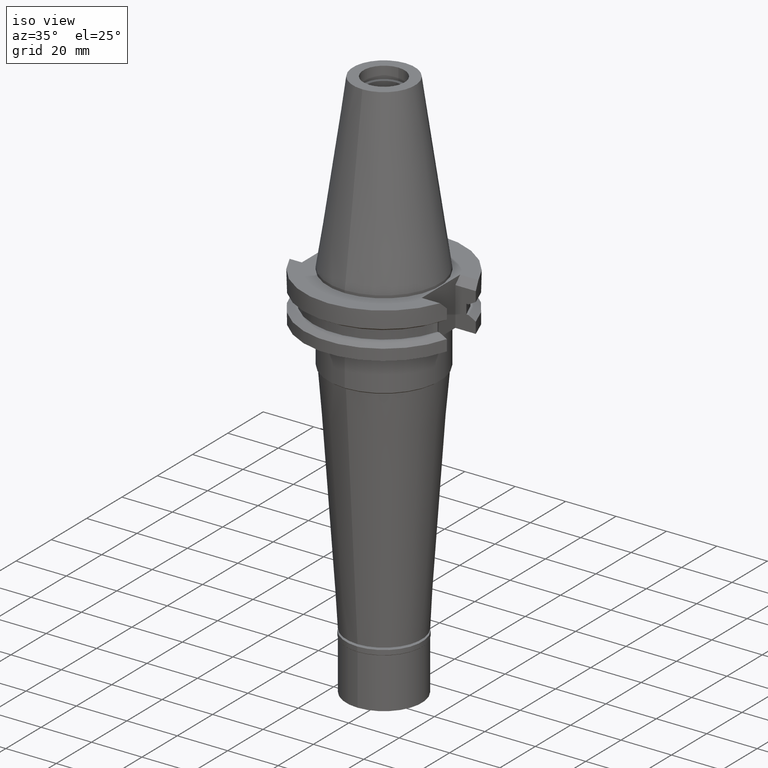
[diagram: clean part render]
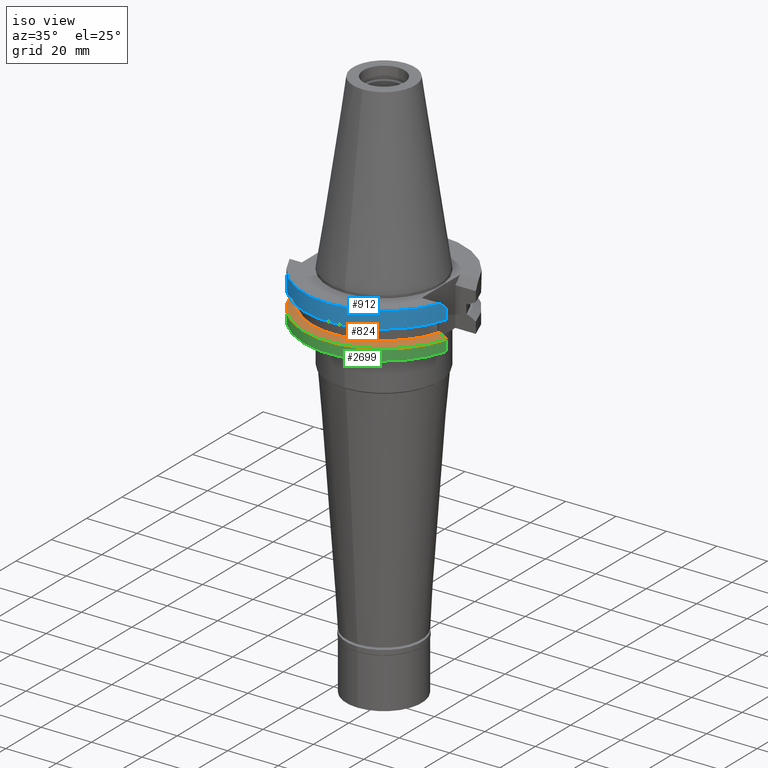
[diagram: same view with three faces highlighted in distinct colors, each labeled with its STEP entity id]
A machine part, iso view with three faces highlighted in distinct colors.
Their STEP definitions:

[orange] entity #824 — the highlighted conical surface has half-angle 60 deg.
#9 = ORIENTED_EDGE ( 'NONE', *, *, #1950, .F. ) ;
#22 = FACE_OUTER_BOUND ( 'NONE', #3254, .T. ) ;
#90 = CARTESIAN_POINT ( 'NONE',  ( -29.69840292686000183, -8.189999973648999898, -14.10718831921999872 ) ) ;
#106 = DIRECTION ( 'NONE',  ( 0.0000000000000000000, 0.0000000000000000000, -1.000000000000000000 ) ) ;
#141 = DIRECTION ( 'NONE',  ( 0.0000000000000000000, 0.0000000000000000000, -1.000000000000000000 ) ) ;
#175 = CARTESIAN_POINT ( 'NONE',  ( 0.0000000000000000000, 1.055021971275999843E-14, -13.85091832103000087 ) ) ;
#295 = CIRCLE ( 'NONE', #463, 31.74999999999998579 ) ;
#372 = CARTESIAN_POINT ( 'NONE',  ( 28.10705132222999936, -8.190000189174000411, -13.22337926646999939 ) ) ;
#411 = B_SPLINE_CURVE_WITH_KNOTS ( 'NONE', 3,
 ( #2697, #372, #3199, #1913, #863, #1405 ),
 .UNSPECIFIED., .F., .F.,
 ( 4, 1, 1, 4 ),
 ( 0.0000000000000000000, 0.3333333333333000081, 0.6666666666667000474, 1.000000000000000000 ),
 .UNSPECIFIED. ) ;
#461 = VERTEX_POINT ( 'NONE', #659 ) ;
#463 = AXIS2_PLACEMENT_3D ( 'NONE', #849, #2899, #781 ) ;
#604 = AXIS2_PLACEMENT_3D ( 'NONE', #175, #141, #1709 ) ;
#659 = CARTESIAN_POINT ( 'NONE',  ( -27.79399588473999927, -8.189999365883000593, -13.05000000000000071 ) ) ;
#692 = CARTESIAN_POINT ( 'NONE',  ( 0.0000000000000000000, 1.055021971275999843E-14, -13.05000000000000071 ) ) ;
#781 = DIRECTION ( 'NONE',  ( 0.9661575315241073270, -0.2579527559055020958, 0.0000000000000000000 ) ) ;
#824 = ADVANCED_FACE ( 'NONE', ( #22 ), #3110, .T. ) ;
#849 = CARTESIAN_POINT ( 'NONE',  ( 0.0000000000000000000, 1.055021971275999843E-14, -14.65183664206000103 ) ) ;
#863 = CARTESIAN_POINT ( 'NONE',  ( 30.34821319413000040, -8.190000601169000305, -14.46927691749000111 ) ) ;
#885 = ORIENTED_EDGE ( 'NONE', *, *, #2909, .F. ) ;
#897 = CARTESIAN_POINT ( 'NONE',  ( -28.10705140341000074, -8.189999365883000593, -13.22337244881000018 ) ) ;
#997 = EDGE_CURVE ( 'NONE', #1016, #461, #1693, .T. ) ;
#1016 = VERTEX_POINT ( 'NONE', #1145 ) ;
#1066 = VERTEX_POINT ( 'NONE', #2265 ) ;
#1081 = VERTEX_POINT ( 'NONE', #2019 ) ;
#1114 = CARTESIAN_POINT ( 'NONE',  ( -28.73791142355999995, -8.190000279292998897, -13.57322328676999845 ) ) ;
#1145 = CARTESIAN_POINT ( 'NONE',  ( 27.79398348484999914, -8.190000189174000411, -13.05000000000000071 ) ) ;
#1339 = B_SPLINE_CURVE_WITH_KNOTS ( 'NONE', 3,
 ( #1608, #3233, #90, #1114, #897, #2148 ),
 .UNSPECIFIED., .F., .F.,
 ( 4, 1, 1, 4 ),
 ( 0.0000000000000000000, 0.3333333333333000081, 0.6666666666667000474, 1.000000000000000000 ),
 .UNSPECIFIED. ) ;
#1405 = CARTESIAN_POINT ( 'NONE',  ( 30.67550146538999911, -8.190000601169000305, -14.65184201425000055 ) ) ;
#1608 = CARTESIAN_POINT ( 'NONE',  ( -30.67550165918999738, -8.189999875291000819, -14.65183552763999941 ) ) ;
#1670 = DIRECTION ( 'NONE',  ( 0.0000000000000000000, -1.000000000000000000, 0.0000000000000000000 ) ) ;
#1693 = CIRCLE ( 'NONE', #2017, 28.97553755052999946 ) ;
#1709 = DIRECTION ( 'NONE',  ( 0.0000000000000000000, -1.000000000000000000, 0.0000000000000000000 ) ) ;
#1830 = ORIENTED_EDGE ( 'NONE', *, *, #997, .T. ) ;
#1913 = CARTESIAN_POINT ( 'NONE',  ( 29.69840152093999919, -8.189999744677999516, -14.10718489775000073 ) ) ;
#1950 = EDGE_CURVE ( 'NONE', #1066, #1081, #295, .T. ) ;
#2017 = AXIS2_PLACEMENT_3D ( 'NONE', #692, #106, #1670 ) ;
#2019 = CARTESIAN_POINT ( 'NONE',  ( -30.67550165918999738, -8.189999875291000819, -14.65183552763999941 ) ) ;
#2148 = CARTESIAN_POINT ( 'NONE',  ( -27.79399588473999927, -8.189999365883000593, -13.05000000000000071 ) ) ;
#2183 = EDGE_CURVE ( 'NONE', #1016, #1066, #411, .T. ) ;
#2245 = ORIENTED_EDGE ( 'NONE', *, *, #2183, .F. ) ;
#2265 = CARTESIAN_POINT ( 'NONE',  ( 30.67550146538999911, -8.190000601169000305, -14.65184201425000055 ) ) ;
#2697 = CARTESIAN_POINT ( 'NONE',  ( 27.79398348484999914, -8.190000189174000411, -13.05000000000000071 ) ) ;
#2899 = DIRECTION ( 'NONE',  ( 0.0000000000000000000, 0.0000000000000000000, -1.000000000000000000 ) ) ;
#2909 = EDGE_CURVE ( 'NONE', #1081, #461, #1339, .T. ) ;
#3110 = CONICAL_SURFACE ( 'NONE', #604, 30.36276877526999840, 1.047197551196400456 ) ;
#3199 = CARTESIAN_POINT ( 'NONE',  ( 28.73790650484999887, -8.189999991875000163, -13.57321774197000153 ) ) ;
#3233 = CARTESIAN_POINT ( 'NONE',  ( -30.34821917377999867, -8.189999875291000819, -14.46927365482000027 ) ) ;
#3254 = EDGE_LOOP ( 'NONE', ( #2245, #1830, #885, #9 ) ) ;

[blue] entity #912 — the highlighted cylindrical surface (partial cylindrical patch) has radius 31.75 mm, axis along (0, 0, -1).
#91 = ORIENTED_EDGE ( 'NONE', *, *, #837, .T. ) ;
#221 = CIRCLE ( 'NONE', #2502, 31.75000000000000000 ) ;
#227 = ORIENTED_EDGE ( 'NONE', *, *, #1554, .F. ) ;
#306 = CARTESIAN_POINT ( 'NONE',  ( -30.67550162588999640, -8.189999999999999503, -3.700000000000000178 ) ) ;
#553 = CIRCLE ( 'NONE', #3281, 31.74999999999998579 ) ;
#616 = ORIENTED_EDGE ( 'NONE', *, *, #854, .F. ) ;
#655 = CARTESIAN_POINT ( 'NONE',  ( -30.67550162588999640, -8.189999999999999503, -3.700000000000000178 ) ) ;
#735 = DIRECTION ( 'NONE',  ( -0.9661575315241073270, -0.2579527559055020958, 0.0000000000000000000 ) ) ;
#773 = VECTOR ( 'NONE', #3034, 1000.000000000000114 ) ;
#814 = VERTEX_POINT ( 'NONE', #2395 ) ;
#837 = EDGE_CURVE ( 'NONE', #1134, #3182, #221, .T. ) ;
#854 = EDGE_CURVE ( 'NONE', #2157, #3118, #2503, .T. ) ;
#901 = CARTESIAN_POINT ( 'NONE',  ( -30.67550165918999738, -8.189999875294001086, -7.608164472371999665 ) ) ;
#910 = DIRECTION ( 'NONE',  ( 0.0000000000000000000, 0.0000000000000000000, -1.000000000000000000 ) ) ;
#912 = ADVANCED_FACE ( 'NONE', ( #2170 ), #1420, .T. ) ;
#942 = B_SPLINE_CURVE_WITH_KNOTS ( 'NONE', 3,
 ( #2777, #1804, #3121, #2566 ),
 .UNSPECIFIED., .F., .F.,
 ( 4, 4 ),
 ( 0.0000000000000000000, 1.000000000000000000 ),
 .UNSPECIFIED. ) ;
#990 = DIRECTION ( 'NONE',  ( 0.0000000000000000000, 0.0000000000000000000, 1.000000000000000000 ) ) ;
#1119 = ORIENTED_EDGE ( 'NONE', *, *, #1309, .F. ) ;
#1121 = CARTESIAN_POINT ( 'NONE',  ( -29.82399034335000110, -10.89000000000000057, -1.000000000001000089 ) ) ;
#1127 = VERTEX_POINT ( 'NONE', #2492 ) ;
#1134 = VERTEX_POINT ( 'NONE', #1755 ) ;
#1140 = CARTESIAN_POINT ( 'NONE',  ( 30.67550162588999640, -8.189999999999999503, -3.700000000000000178 ) ) ;
#1170 = EDGE_CURVE ( 'NONE', #2157, #1127, #553, .T. ) ;
#1177 = EDGE_LOOP ( 'NONE', ( #1119, #91, #227, #616, #1482, #1990 ) ) ;
#1309 = EDGE_CURVE ( 'NONE', #1134, #814, #942, .T. ) ;
#1375 = CARTESIAN_POINT ( 'NONE',  ( -30.14799306409551960, -10.00266721625513888, -1.887332783744861908 ) ) ;
#1420 = CYLINDRICAL_SURFACE ( 'NONE', #2508, 31.75000000000000000 ) ;
#1482 = ORIENTED_EDGE ( 'NONE', *, *, #1170, .T. ) ;
#1554 = EDGE_CURVE ( 'NONE', #3118, #3182, #3143, .T. ) ;
#1686 = LINE ( 'NONE', #1140, #2869 ) ;
#1755 = CARTESIAN_POINT ( 'NONE',  ( 29.82399034335000110, -10.89000000000000057, -1.000000000001000089 ) ) ;
#1804 = CARTESIAN_POINT ( 'NONE',  ( 30.14799306409552671, -10.00266721625513888, -1.887332783744861908 ) ) ;
#1990 = ORIENTED_EDGE ( 'NONE', *, *, #2357, .F. ) ;
#1994 = DIRECTION ( 'NONE',  ( 0.0000000000000000000, -1.000000000000000000, 0.0000000000000000000 ) ) ;
#2023 = CARTESIAN_POINT ( 'NONE',  ( -29.82399034335000110, -10.89000000000000057, -1.000000000001000089 ) ) ;
#2157 = VERTEX_POINT ( 'NONE', #901 ) ;
#2170 = FACE_OUTER_BOUND ( 'NONE', #1177, .T. ) ;
#2246 = CARTESIAN_POINT ( 'NONE',  ( -30.67550165918999738, -8.189999875294001086, -7.608164472371999665 ) ) ;
#2357 = EDGE_CURVE ( 'NONE', #814, #1127, #1686, .T. ) ;
#2395 = CARTESIAN_POINT ( 'NONE',  ( 30.67550162588999640, -8.189999999999999503, -3.700000000000000178 ) ) ;
#2408 = CARTESIAN_POINT ( 'NONE',  ( 0.0000000000000000000, 1.121665249527999917E-14, -7.608163357944999206 ) ) ;
#2426 = DIRECTION ( 'NONE',  ( -4.107004163246946933E-08, -1.538276136285980180E-07, -0.9999999999999872324 ) ) ;
#2450 = CARTESIAN_POINT ( 'NONE',  ( 0.0000000000000000000, 2.191474830903999739E-14, -1.000000000000000000 ) ) ;
#2492 = CARTESIAN_POINT ( 'NONE',  ( 30.67550146537999822, -8.190000601182999773, -7.608157985400000101 ) ) ;
#2502 = AXIS2_PLACEMENT_3D ( 'NONE', #2450, #3300, #3001 ) ;
#2503 = LINE ( 'NONE', #2246, #773 ) ;
#2508 = AXIS2_PLACEMENT_3D ( 'NONE', #2728, #910, #1994 ) ;
#2566 = CARTESIAN_POINT ( 'NONE',  ( 30.67550162588999640, -8.189999999999999503, -3.700000000000000178 ) ) ;
#2728 = CARTESIAN_POINT ( 'NONE',  ( 0.0000000000000000000, 2.191474830903999739E-14, 78.94750000000000512 ) ) ;
#2777 = CARTESIAN_POINT ( 'NONE',  ( 29.82399034335000110, -10.89000000000000057, -1.000000000001000089 ) ) ;
#2869 = VECTOR ( 'NONE', #2426, 1000.000000000000227 ) ;
#3001 = DIRECTION ( 'NONE',  ( 0.0000000000000000000, -1.000000000000000000, 0.0000000000000000000 ) ) ;
#3034 = DIRECTION ( 'NONE',  ( 8.519487939203996899E-09, -3.190908088073998522E-08, 0.9999999999999994449 ) ) ;
#3118 = VERTEX_POINT ( 'NONE', #655 ) ;
#3121 = CARTESIAN_POINT ( 'NONE',  ( 30.43183015827552396, -9.102667216255303728, -2.787332783744696840 ) ) ;
#3143 = B_SPLINE_CURVE_WITH_KNOTS ( 'NONE', 3,
 ( #306, #3174, #1375, #1121 ),
 .UNSPECIFIED., .F., .F.,
 ( 4, 4 ),
 ( 0.0000000000000000000, 1.000000000000000000 ),
 .UNSPECIFIED. ) ;
#3174 = CARTESIAN_POINT ( 'NONE',  ( -30.43183015827552040, -9.102667216255303728, -2.787332783744696840 ) ) ;
#3182 = VERTEX_POINT ( 'NONE', #2023 ) ;
#3281 = AXIS2_PLACEMENT_3D ( 'NONE', #2408, #990, #735 ) ;
#3300 = DIRECTION ( 'NONE',  ( 0.0000000000000000000, 0.0000000000000000000, -1.000000000000000000 ) ) ;

[green] entity #2699 — the highlighted cylindrical surface (partial cylindrical patch) has radius 31.75 mm, axis along (0, 0, -1).
#43 = DIRECTION ( 'NONE',  ( 0.0000000000000000000, 0.0000000000000000000, 1.000000000000000000 ) ) ;
#167 = EDGE_LOOP ( 'NONE', ( #2625, #583, #2229, #473 ) ) ;
#272 = AXIS2_PLACEMENT_3D ( 'NONE', #339, #43, #2312 ) ;
#282 = CARTESIAN_POINT ( 'NONE',  ( 0.0000000000000000000, 2.191474830903999739E-14, 78.94750000000000512 ) ) ;
#295 = CIRCLE ( 'NONE', #463, 31.74999999999998579 ) ;
#332 = AXIS2_PLACEMENT_3D ( 'NONE', #282, #1069, #2624 ) ;
#339 = CARTESIAN_POINT ( 'NONE',  ( 0.0000000000000000000, 2.191474830903999739E-14, -19.05000000000000071 ) ) ;
#463 = AXIS2_PLACEMENT_3D ( 'NONE', #849, #2899, #781 ) ;
#473 = ORIENTED_EDGE ( 'NONE', *, *, #2456, .F. ) ;
#583 = ORIENTED_EDGE ( 'NONE', *, *, #2200, .F. ) ;
#625 = LINE ( 'NONE', #2177, #1197 ) ;
#781 = DIRECTION ( 'NONE',  ( 0.9661575315241073270, -0.2579527559055020958, 0.0000000000000000000 ) ) ;
#849 = CARTESIAN_POINT ( 'NONE',  ( 0.0000000000000000000, 1.055021971275999843E-14, -14.65183664206000103 ) ) ;
#1066 = VERTEX_POINT ( 'NONE', #2265 ) ;
#1069 = DIRECTION ( 'NONE',  ( 0.0000000000000000000, 0.0000000000000000000, -1.000000000000000000 ) ) ;
#1081 = VERTEX_POINT ( 'NONE', #2019 ) ;
#1197 = VECTOR ( 'NONE', #3266, 999.9999999999998863 ) ;
#1231 = CARTESIAN_POINT ( 'NONE',  ( -30.67550162588999640, -8.189999999999999503, -19.05000000000000071 ) ) ;
#1334 = FACE_OUTER_BOUND ( 'NONE', #167, .T. ) ;
#1791 = CIRCLE ( 'NONE', #272, 31.75000000000000000 ) ;
#1865 = VERTEX_POINT ( 'NONE', #1231 ) ;
#1950 = EDGE_CURVE ( 'NONE', #1066, #1081, #295, .T. ) ;
#2019 = CARTESIAN_POINT ( 'NONE',  ( -30.67550165918999738, -8.189999875291000819, -14.65183552763999941 ) ) ;
#2046 = EDGE_CURVE ( 'NONE', #1865, #2969, #1791, .T. ) ;
#2121 = CARTESIAN_POINT ( 'NONE',  ( 30.67550162588999640, -8.189999999999999503, -19.05000000000000071 ) ) ;
#2177 = CARTESIAN_POINT ( 'NONE',  ( -30.67550162588999640, -8.189999999999999503, -19.05000000000000071 ) ) ;
#2200 = EDGE_CURVE ( 'NONE', #1865, #1081, #625, .T. ) ;
#2229 = ORIENTED_EDGE ( 'NONE', *, *, #2046, .T. ) ;
#2235 = DIRECTION ( 'NONE',  ( 3.649359055784928567E-08, 1.366865900374972287E-07, -0.9999999999999900080 ) ) ;
#2265 = CARTESIAN_POINT ( 'NONE',  ( 30.67550146538999911, -8.190000601169000305, -14.65184201425000055 ) ) ;
#2312 = DIRECTION ( 'NONE',  ( 0.0000000000000000000, -1.000000000000000000, 0.0000000000000000000 ) ) ;
#2456 = EDGE_CURVE ( 'NONE', #1066, #2969, #3246, .T. ) ;
#2509 = CARTESIAN_POINT ( 'NONE',  ( 30.67550146538999911, -8.190000601169000305, -14.65184201425000055 ) ) ;
#2606 = CYLINDRICAL_SURFACE ( 'NONE', #332, 31.75000000000000000 ) ;
#2624 = DIRECTION ( 'NONE',  ( 0.0000000000000000000, -1.000000000000000000, 0.0000000000000000000 ) ) ;
#2625 = ORIENTED_EDGE ( 'NONE', *, *, #1950, .T. ) ;
#2699 = ADVANCED_FACE ( 'NONE', ( #1334 ), #2606, .T. ) ;
#2717 = VECTOR ( 'NONE', #2235, 1000.000000000000000 ) ;
#2899 = DIRECTION ( 'NONE',  ( 0.0000000000000000000, 0.0000000000000000000, -1.000000000000000000 ) ) ;
#2969 = VERTEX_POINT ( 'NONE', #2121 ) ;
#3246 = LINE ( 'NONE', #2509, #2717 ) ;
#3266 = DIRECTION ( 'NONE',  ( -7.570534385398997503E-09, 2.835481599841999143E-08, 0.9999999999999996669 ) ) ;